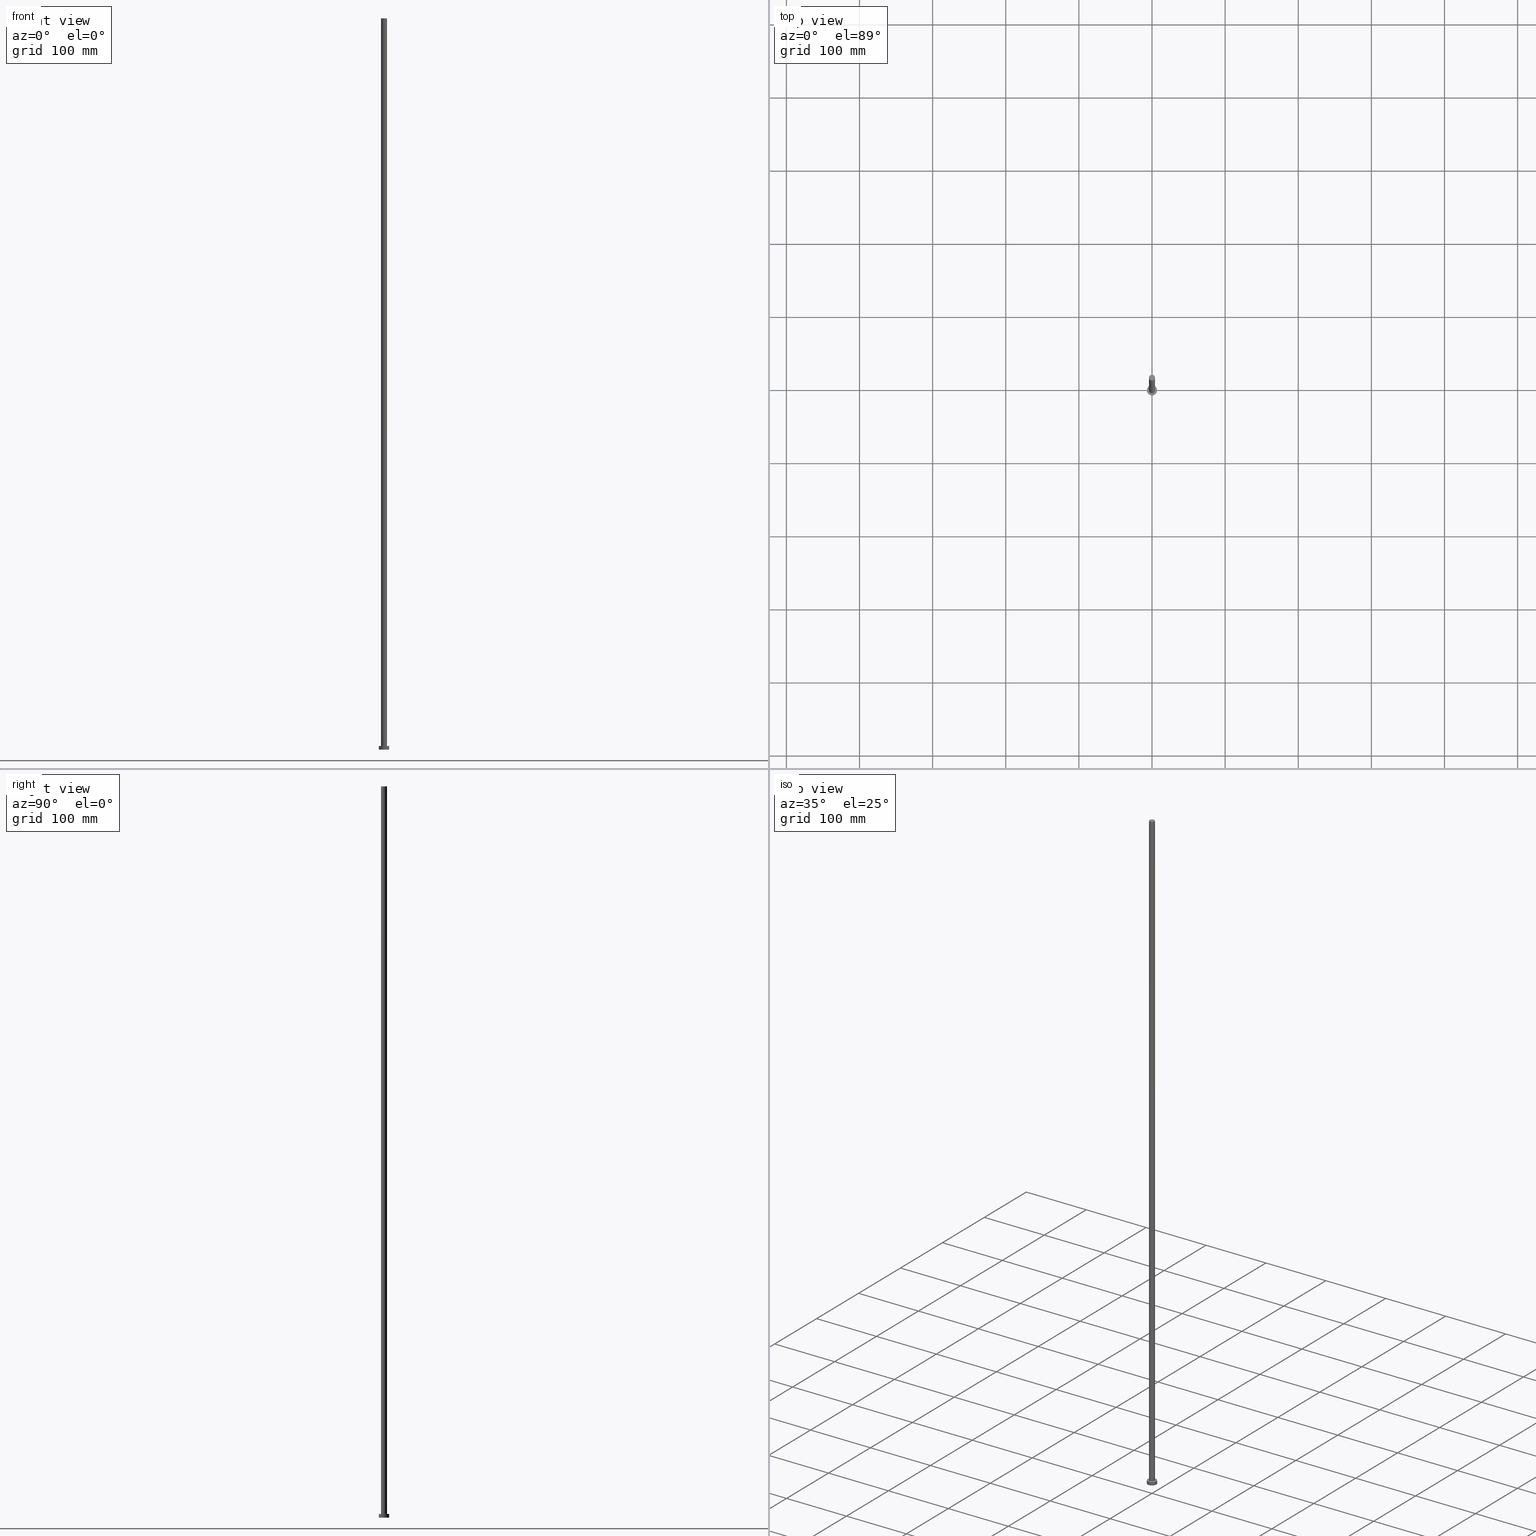
[diagram: canonical four-view strip — front | top / right | iso, engineering-drawing reading convention]
A machine part, canonical four-view strip (front | top / right | iso — engineering-drawing reading convention). The complete STEP part file that produces these views, byte-faithful:
ISO-10303-21;
HEADER;
FILE_DESCRIPTION (( 'STEP AP203' ),
    '1' );
FILE_NAME ('8072.STEP',
    '2023-02-12T11:44:51',
    ( '' ),
    ( '' ),
    'SwSTEP 2.0',
    'SolidWorks 2019',
    '' );
FILE_SCHEMA (( 'CONFIG_CONTROL_DESIGN' ));
ENDSEC;

DATA;
#1 = APPLICATION_PROTOCOL_DEFINITION ( 'international standard', 'config_control_design', 1994, #45 ) ;
#2 = DIRECTION ( 'NONE',  ( -0.000000000000000000, -0.000000000000000000, -1.000000000000000000 ) ) ;
#3 = DIRECTION ( 'NONE',  ( 1.000000000000000000, 0.000000000000000000, 0.000000000000000000 ) ) ;
#4 = AXIS2_PLACEMENT_3D ( 'NONE', #27, #56, #228 ) ;
#5 = ORIENTED_EDGE ( 'NONE', *, *, #226, .T. ) ;
#6 = DIRECTION ( 'NONE',  ( 0.000000000000000000, 0.000000000000000000, 1.000000000000000000 ) ) ;
#7 = ADVANCED_FACE ( 'NONE', ( #242 ), #142, .T. ) ;
#8 = LINE ( 'NONE', #103, #131 ) ;
#9 = CARTESIAN_POINT ( 'NONE',  ( 0.000000000000000000, 0.000000000000000000, 1000.000000000000000 ) ) ;
#10 = ORGANIZATION ( 'NEUR�EN�', 'NEUR�EN�', '' ) ;
#11 = FACE_BOUND ( 'NONE', #188, .T. ) ;
#12 = EDGE_CURVE ( 'NONE', #208, #168, #156, .T. ) ;
#13 = CARTESIAN_POINT ( 'NONE',  ( 0.000000000000000000, 0.000000000000000000, 5.000000000000000000 ) ) ;
#14 = SECURITY_CLASSIFICATION_LEVEL ( 'unclassified' ) ;
#15 = ORIENTED_EDGE ( 'NONE', *, *, #199, .F. ) ;
#16 = CALENDAR_DATE ( 2023, 12, 2 ) ;
#17 = AXIS2_PLACEMENT_3D ( 'NONE', #26, #229, #173 ) ;
#18 = CC_DESIGN_PERSON_AND_ORGANIZATION_ASSIGNMENT ( #98, #219, ( #171 ) ) ;
#19 = ORIENTED_EDGE ( 'NONE', *, *, #125, .T. ) ;
#20 = DIRECTION ( 'NONE',  ( -0.000000000000000000, -0.000000000000000000, -1.000000000000000000 ) ) ;
#21 = APPROVAL_STATUS ( 'not_yet_approved' ) ;
#22 = ORIENTED_EDGE ( 'NONE', *, *, #66, .F. ) ;
#23 = ORIENTED_EDGE ( 'NONE', *, *, #163, .F. ) ;
#24 = EDGE_LOOP ( 'NONE', ( #165, #76, #44, #39 ) ) ;
#25 = LINE ( 'NONE', #169, #176 ) ;
#26 = CARTESIAN_POINT ( 'NONE',  ( 0.000000000000000000, 0.000000000000000000, 5.000000000000000000 ) ) ;
#27 = CARTESIAN_POINT ( 'NONE',  ( 0.000000000000000000, 0.000000000000000000, 0.000000000000000000 ) ) ;
#28 = PRODUCT_RELATED_PRODUCT_CATEGORY ( 'detail', '', ( #88 ) ) ;
#29 = CC_DESIGN_SECURITY_CLASSIFICATION ( #93, ( #171 ) ) ;
#30 = DIRECTION ( 'NONE',  ( 0.000000000000000000, 0.000000000000000000, 1.000000000000000000 ) ) ;
#31 = DIRECTION ( 'NONE',  ( 1.000000000000000000, 0.000000000000000000, 0.000000000000000000 ) ) ;
#32 = LOCAL_TIME ( 12, 44, 51.00000000000000000, #200 ) ;
#33 = EDGE_LOOP ( 'NONE', ( #23, #19, #42, #22 ) ) ;
#34 = COORDINATED_UNIVERSAL_TIME_OFFSET ( 1, 0, .AHEAD. ) ;
#35 = PERSON ( 'NEUR�EN�', 'NEUR�EN�', 'NEUR�EN�', ('NEUR�EN�'), ('NEUR�EN�'), ('NEUR�EN�') ) ;
#36 = AXIS2_PLACEMENT_3D ( 'NONE', #149, #30, #31 ) ;
#37 = PERSON_AND_ORGANIZATION_ROLE ( 'classification_officer' ) ;
#38 = VERTEX_POINT ( 'NONE', #68 ) ;
#39 = ORIENTED_EDGE ( 'NONE', *, *, #113, .F. ) ;
#40 = VECTOR ( 'NONE', #20, 1000.000000000000000 ) ;
#41 = LOCAL_TIME ( 12, 44, 51.00000000000000000, #78 ) ;
#42 = ORIENTED_EDGE ( 'NONE', *, *, #74, .T. ) ;
#43 = VERTEX_POINT ( 'NONE', #104 ) ;
#44 = ORIENTED_EDGE ( 'NONE', *, *, #235, .T. ) ;
#45 = APPLICATION_CONTEXT ( 'configuration controlled 3d designs of mechanical parts and assemblies' ) ;
#46 = CARTESIAN_POINT ( 'NONE',  ( 0.000000000000000000, 0.000000000000000000, 5.000000000000000000 ) ) ;
#47 = DIRECTION ( 'NONE',  ( 0.000000000000000000, 0.000000000000000000, 1.000000000000000000 ) ) ;
#48 = CC_DESIGN_DATE_AND_TIME_ASSIGNMENT ( #238, #57, ( #213 ) ) ;
#49 = CARTESIAN_POINT ( 'NONE',  ( 7.000000000000000000, 8.572527594031473190E-16, 0.000000000000000000 ) ) ;
#50 = AXIS2_PLACEMENT_3D ( 'NONE', #127, #6, #3 ) ;
#51 = PRODUCT_DEFINITION_SHAPE ( 'NONE', 'NONE',  #213 ) ;
#52 = DIRECTION ( 'NONE',  ( 0.000000000000000000, 0.000000000000000000, 1.000000000000000000 ) ) ;
#53 = AXIS2_PLACEMENT_3D ( 'NONE', #9, #89, #111 ) ;
#54 = AXIS2_PLACEMENT_3D ( 'NONE', #112, #72, #153 ) ;
#55 = FACE_OUTER_BOUND ( 'NONE', #101, .T. ) ;
#56 = DIRECTION ( 'NONE',  ( 0.000000000000000000, 0.000000000000000000, 1.000000000000000000 ) ) ;
#57 = DATE_TIME_ROLE ( 'creation_date' ) ;
#58 = DATE_AND_TIME ( #160, #32 ) ;
#59 = APPROVAL_DATE_TIME ( #58, #62 ) ;
#60 = PERSON_AND_ORGANIZATION ( #35, #10 ) ;
#61 = ORIENTED_EDGE ( 'NONE', *, *, #163, .T. ) ;
#62 = APPROVAL ( #158, 'NEUR�EN�' ) ;
#63 = ORIENTED_EDGE ( 'NONE', *, *, #99, .T. ) ;
#64 = LOCAL_TIME ( 12, 44, 51.00000000000000000, #195 ) ;
#65 = CARTESIAN_POINT ( 'NONE',  ( -7.000000000000000000, 0.000000000000000000, 5.000000000000000000 ) ) ;
#66 = EDGE_CURVE ( 'NONE', #38, #129, #187, .T. ) ;
#67 = DIRECTION ( 'NONE',  ( 1.000000000000000000, 0.000000000000000000, 0.000000000000000000 ) ) ;
#68 = CARTESIAN_POINT ( 'NONE',  ( -4.099999999999999645, 0.000000000000000000, 1000.000000000000000 ) ) ;
#69 = EDGE_CURVE ( 'NONE', #208, #201, #8, .T. ) ;
#70 = CARTESIAN_POINT ( 'NONE',  ( 4.099999999999999645, 5.021051876504146399E-16, 1000.000000000000000 ) ) ;
#71 = CARTESIAN_POINT ( 'NONE',  ( 0.000000000000000000, 0.000000000000000000, 0.000000000000000000 ) ) ;
#72 = DIRECTION ( 'NONE',  ( 0.000000000000000000, 0.000000000000000000, 1.000000000000000000 ) ) ;
#73 = LOCAL_TIME ( 12, 44, 51.00000000000000000, #34 ) ;
#74 = EDGE_CURVE ( 'NONE', #43, #129, #170, .T. ) ;
#75 = PERSON_AND_ORGANIZATION ( #35, #10 ) ;
#76 = ORIENTED_EDGE ( 'NONE', *, *, #69, .T. ) ;
#77 =( GEOMETRIC_REPRESENTATION_CONTEXT ( 3 ) GLOBAL_UNCERTAINTY_ASSIGNED_CONTEXT ( ( #203 ) ) GLOBAL_UNIT_ASSIGNED_CONTEXT ( ( #191, #227, #215 ) ) REPRESENTATION_CONTEXT ( 'NONE', 'WORKASPACE' ) );
#78 = COORDINATED_UNIVERSAL_TIME_OFFSET ( 1, 0, .AHEAD. ) ;
#79 = DATE_AND_TIME ( #105, #185 ) ;
#80 = MANIFOLD_SOLID_BREP ( 'P�idat vysunut�m3', #141 ) ;
#81 = EDGE_LOOP ( 'NONE', ( #63, #61 ) ) ;
#82 = DATE_TIME_ROLE ( 'classification_date' ) ;
#83 = DIRECTION ( 'NONE',  ( 0.000000000000000000, 0.000000000000000000, 1.000000000000000000 ) ) ;
#84 = APPROVAL ( #138, 'NEUR�EN�' ) ;
#85 = ORIENTED_EDGE ( 'NONE', *, *, #113, .T. ) ;
#86 = FACE_OUTER_BOUND ( 'NONE', #81, .T. ) ;
#87 = LINE ( 'NONE', #65, #230 ) ;
#88 = PRODUCT ( '8072', '8072', '', ( #120 ) ) ;
#89 = DIRECTION ( 'NONE',  ( -0.000000000000000000, -0.000000000000000000, -1.000000000000000000 ) ) ;
#90 = CIRCLE ( 'NONE', #254, 7.000000000000000000 ) ;
#91 = DIRECTION ( 'NONE',  ( -1.000000000000000000, 0.000000000000000000, 0.000000000000000000 ) ) ;
#92 = CARTESIAN_POINT ( 'NONE',  ( 7.000000000000000000, 8.572527594031473190E-16, 5.000000000000000000 ) ) ;
#93 = SECURITY_CLASSIFICATION ( '', '', #14 ) ;
#94 = FACE_OUTER_BOUND ( 'NONE', #126, .T. ) ;
#95 = DATE_AND_TIME ( #16, #64 ) ;
#96 = AXIS2_PLACEMENT_3D ( 'NONE', #46, #124, #67 ) ;
#97 = CC_DESIGN_APPROVAL ( #233, ( #93 ) ) ;
#98 = PERSON_AND_ORGANIZATION ( #35, #10 ) ;
#99 = EDGE_CURVE ( 'NONE', #38, #220, #132, .T. ) ;
#100 = APPROVAL_ROLE ( '' ) ;
#101 = EDGE_LOOP ( 'NONE', ( #202, #123, #85, #108 ) ) ;
#102 = CIRCLE ( 'NONE', #236, 4.099999999999999645 ) ;
#103 = CARTESIAN_POINT ( 'NONE',  ( 7.000000000000000000, 8.572527594031473190E-16, 5.000000000000000000 ) ) ;
#104 = CARTESIAN_POINT ( 'NONE',  ( 4.099999999999999645, 5.021051876504146399E-16, 5.000000000000000000 ) ) ;
#105 = CALENDAR_DATE ( 2023, 12, 2 ) ;
#106 = CARTESIAN_POINT ( 'NONE',  ( 0.000000000000000000, 0.000000000000000000, 5.000000000000000000 ) ) ;
#107 = ADVANCED_FACE ( 'NONE', ( #86 ), #181, .T. ) ;
#108 = ORIENTED_EDGE ( 'NONE', *, *, #179, .T. ) ;
#109 = DIRECTION ( 'NONE',  ( -0.000000000000000000, -0.000000000000000000, -1.000000000000000000 ) ) ;
#110 = AXIS2_PLACEMENT_3D ( 'NONE', #145, #83, #223 ) ;
#111 = DIRECTION ( 'NONE',  ( -1.000000000000000000, 0.000000000000000000, 0.000000000000000000 ) ) ;
#112 = CARTESIAN_POINT ( 'NONE',  ( 0.000000000000000000, 0.000000000000000000, 0.000000000000000000 ) ) ;
#113 = EDGE_CURVE ( 'NONE', #168, #205, #87, .T. ) ;
#114 = CYLINDRICAL_SURFACE ( 'NONE', #162, 7.000000000000000000 ) ;
#115 = PLANE ( 'NONE',  #183 ) ;
#116 = APPROVAL_PERSON_ORGANIZATION ( #139, #84, #218 ) ;
#117 = PERSON_AND_ORGANIZATION ( #35, #10 ) ;
#118 = APPLICATION_CONTEXT ( 'configuration controlled 3d designs of mechanical parts and assemblies' ) ;
#119 = CALENDAR_DATE ( 2023, 12, 2 ) ;
#120 = MECHANICAL_CONTEXT ( 'NONE', #118, 'mechanical' ) ;
#121 = DESIGN_CONTEXT ( 'detailed design', #45, 'design' ) ;
#122 = CC_DESIGN_PERSON_AND_ORGANIZATION_ASSIGNMENT ( #60, #194, ( #88 ) ) ;
#123 = ORIENTED_EDGE ( 'NONE', *, *, #226, .F. ) ;
#124 = DIRECTION ( 'NONE',  ( 0.000000000000000000, 0.000000000000000000, 1.000000000000000000 ) ) ;
#125 = EDGE_CURVE ( 'NONE', #220, #43, #25, .T. ) ;
#126 = EDGE_LOOP ( 'NONE', ( #5, #128 ) ) ;
#127 = CARTESIAN_POINT ( 'NONE',  ( 0.000000000000000000, 0.000000000000000000, 1000.000000000000000 ) ) ;
#128 = ORIENTED_EDGE ( 'NONE', *, *, #12, .T. ) ;
#129 = VERTEX_POINT ( 'NONE', #140 ) ;
#130 = FACE_OUTER_BOUND ( 'NONE', #161, .T. ) ;
#131 = VECTOR ( 'NONE', #182, 1000.000000000000000 ) ;
#132 = CIRCLE ( 'NONE', #50, 4.099999999999999645 ) ;
#133 = CARTESIAN_POINT ( 'NONE',  ( -7.000000000000000000, 0.000000000000000000, 5.000000000000000000 ) ) ;
#134 = AXIS2_PLACEMENT_3D ( 'NONE', #151, #212, #91 ) ;
#135 = CC_DESIGN_PERSON_AND_ORGANIZATION_ASSIGNMENT ( #75, #197, ( #213 ) ) ;
#136 = APPROVAL_DATE_TIME ( #95, #84 ) ;
#137 = ORIENTED_EDGE ( 'NONE', *, *, #125, .F. ) ;
#138 = APPROVAL_STATUS ( 'not_yet_approved' ) ;
#139 = PERSON_AND_ORGANIZATION ( #35, #10 ) ;
#140 = CARTESIAN_POINT ( 'NONE',  ( -4.099999999999999645, 0.000000000000000000, 5.000000000000000000 ) ) ;
#141 = CLOSED_SHELL ( 'NONE', ( #159, #7, #240, #177, #150, #193, #107 ) ) ;
#142 = CYLINDRICAL_SURFACE ( 'NONE', #243, 7.000000000000000000 ) ;
#143 = CIRCLE ( 'NONE', #54, 7.000000000000000000 ) ;
#144 = SHAPE_DEFINITION_REPRESENTATION ( #51, #198 ) ;
#145 = CARTESIAN_POINT ( 'NONE',  ( 0.000000000000000000, 0.000000000000000000, 5.000000000000000000 ) ) ;
#146 = CARTESIAN_POINT ( 'NONE',  ( -4.099999999999999645, 0.000000000000000000, 1000.000000000000000 ) ) ;
#147 = APPROVAL_PERSON_ORGANIZATION ( #234, #62, #100 ) ;
#148 = FACE_OUTER_BOUND ( 'NONE', #216, .T. ) ;
#149 = CARTESIAN_POINT ( 'NONE',  ( 0.000000000000000000, 0.000000000000000000, 1000.000000000000000 ) ) ;
#150 = ADVANCED_FACE ( 'NONE', ( #130 ), #248, .F. ) ;
#151 = CARTESIAN_POINT ( 'NONE',  ( 0.000000000000000000, 0.000000000000000000, 1000.000000000000000 ) ) ;
#152 = CIRCLE ( 'NONE', #36, 4.099999999999999645 ) ;
#153 = DIRECTION ( 'NONE',  ( 1.000000000000000000, 0.000000000000000000, 0.000000000000000000 ) ) ;
#154 = CARTESIAN_POINT ( 'NONE',  ( -7.000000000000000000, 0.000000000000000000, 0.000000000000000000 ) ) ;
#155 = CC_DESIGN_PERSON_AND_ORGANIZATION_ASSIGNMENT ( #117, #252, ( #171 ) ) ;
#156 = CIRCLE ( 'NONE', #96, 7.000000000000000000 ) ;
#157 = CC_DESIGN_APPROVAL ( #84, ( #171 ) ) ;
#158 = APPROVAL_STATUS ( 'not_yet_approved' ) ;
#159 = ADVANCED_FACE ( 'NONE', ( #250 ), #214, .T. ) ;
#160 = CALENDAR_DATE ( 2023, 12, 2 ) ;
#161 = EDGE_LOOP ( 'NONE', ( #184, #204 ) ) ;
#162 = AXIS2_PLACEMENT_3D ( 'NONE', #13, #109, #251 ) ;
#163 = EDGE_CURVE ( 'NONE', #220, #38, #152, .T. ) ;
#164 = PERSON_AND_ORGANIZATION ( #35, #10 ) ;
#165 = ORIENTED_EDGE ( 'NONE', *, *, #12, .F. ) ;
#166 = ORIENTED_EDGE ( 'NONE', *, *, #66, .T. ) ;
#167 = DIRECTION ( 'NONE',  ( -0.000000000000000000, -0.000000000000000000, -1.000000000000000000 ) ) ;
#168 = VERTEX_POINT ( 'NONE', #133 ) ;
#169 = CARTESIAN_POINT ( 'NONE',  ( 4.099999999999999645, 5.021051876504146399E-16, 1000.000000000000000 ) ) ;
#170 = CIRCLE ( 'NONE', #110, 4.099999999999999645 ) ;
#171 = PRODUCT_DEFINITION_FORMATION_WITH_SPECIFIED_SOURCE ( 'LIBOVOLN�', '', #88, .NOT_KNOWN. ) ;
#172 = DIRECTION ( 'NONE',  ( 1.000000000000000000, 0.000000000000000000, 0.000000000000000000 ) ) ;
#173 = DIRECTION ( 'NONE',  ( 1.000000000000000000, 0.000000000000000000, 0.000000000000000000 ) ) ;
#174 = CARTESIAN_POINT ( 'NONE',  ( 0.000000000000000000, 0.000000000000000000, 5.000000000000000000 ) ) ;
#175 = COORDINATED_UNIVERSAL_TIME_OFFSET ( 1, 0, .AHEAD. ) ;
#176 = VECTOR ( 'NONE', #247, 1000.000000000000000 ) ;
#177 = ADVANCED_FACE ( 'NONE', ( #11, #94 ), #115, .T. ) ;
#178 = CALENDAR_DATE ( 2023, 12, 2 ) ;
#179 = EDGE_CURVE ( 'NONE', #205, #201, #90, .T. ) ;
#180 = APPROVAL_PERSON_ORGANIZATION ( #164, #233, #186 ) ;
#181 = PLANE ( 'NONE',  #196 ) ;
#182 = DIRECTION ( 'NONE',  ( -0.000000000000000000, -0.000000000000000000, -1.000000000000000000 ) ) ;
#183 = AXIS2_PLACEMENT_3D ( 'NONE', #174, #47, #211 ) ;
#184 = ORIENTED_EDGE ( 'NONE', *, *, #179, .F. ) ;
#185 = LOCAL_TIME ( 12, 44, 51.00000000000000000, #175 ) ;
#186 = APPROVAL_ROLE ( '' ) ;
#187 = LINE ( 'NONE', #146, #40 ) ;
#188 = EDGE_LOOP ( 'NONE', ( #15, #222 ) ) ;
#189 = DIRECTION ( 'NONE',  ( 1.000000000000000000, 0.000000000000000000, 0.000000000000000000 ) ) ;
#190 = CC_DESIGN_DATE_AND_TIME_ASSIGNMENT ( #79, #82, ( #93 ) ) ;
#191 =( LENGTH_UNIT ( ) NAMED_UNIT ( * ) SI_UNIT ( .MILLI., .METRE. ) );
#192 = DIRECTION ( 'NONE',  ( 0.000000000000000000, 0.000000000000000000, 1.000000000000000000 ) ) ;
#193 = ADVANCED_FACE ( 'NONE', ( #148 ), #249, .T. ) ;
#194 = PERSON_AND_ORGANIZATION_ROLE ( 'design_owner' ) ;
#195 = COORDINATED_UNIVERSAL_TIME_OFFSET ( 1, 0, .AHEAD. ) ;
#196 = AXIS2_PLACEMENT_3D ( 'NONE', #244, #246, #224 ) ;
#197 = PERSON_AND_ORGANIZATION_ROLE ( 'creator' ) ;
#198 = ADVANCED_BREP_SHAPE_REPRESENTATION ( '8072', ( #80, #209 ), #77 ) ;
#199 = EDGE_CURVE ( 'NONE', #129, #43, #102, .T. ) ;
#200 = COORDINATED_UNIVERSAL_TIME_OFFSET ( 1, 0, .AHEAD. ) ;
#201 = VERTEX_POINT ( 'NONE', #49 ) ;
#202 = ORIENTED_EDGE ( 'NONE', *, *, #69, .F. ) ;
#203 = UNCERTAINTY_MEASURE_WITH_UNIT (LENGTH_MEASURE( 1.000000000000000082E-05 ), #191, 'distance_accuracy_value', 'NONE');
#204 = ORIENTED_EDGE ( 'NONE', *, *, #235, .F. ) ;
#205 = VERTEX_POINT ( 'NONE', #154 ) ;
#206 = CC_DESIGN_PERSON_AND_ORGANIZATION_ASSIGNMENT ( #217, #37, ( #93 ) ) ;
#207 = DATE_AND_TIME ( #178, #41 ) ;
#208 = VERTEX_POINT ( 'NONE', #92 ) ;
#209 = AXIS2_PLACEMENT_3D ( 'NONE', #253, #239, #255 ) ;
#210 = ORIENTED_EDGE ( 'NONE', *, *, #199, .T. ) ;
#211 = DIRECTION ( 'NONE',  ( 1.000000000000000000, 0.000000000000000000, -0.000000000000000000 ) ) ;
#212 = DIRECTION ( 'NONE',  ( -0.000000000000000000, -0.000000000000000000, -1.000000000000000000 ) ) ;
#213 = PRODUCT_DEFINITION ( 'NEZN�M�', '', #171, #121 ) ;
#214 = CYLINDRICAL_SURFACE ( 'NONE', #53, 4.099999999999999645 ) ;
#215 =( NAMED_UNIT ( * ) SI_UNIT ( $, .STERADIAN. ) SOLID_ANGLE_UNIT ( ) );
#216 = EDGE_LOOP ( 'NONE', ( #137, #221, #166, #210 ) ) ;
#217 = PERSON_AND_ORGANIZATION ( #35, #10 ) ;
#218 = APPROVAL_ROLE ( '' ) ;
#219 = PERSON_AND_ORGANIZATION_ROLE ( 'design_supplier' ) ;
#220 = VERTEX_POINT ( 'NONE', #70 ) ;
#221 = ORIENTED_EDGE ( 'NONE', *, *, #99, .F. ) ;
#222 = ORIENTED_EDGE ( 'NONE', *, *, #74, .F. ) ;
#223 = DIRECTION ( 'NONE',  ( 1.000000000000000000, 0.000000000000000000, 0.000000000000000000 ) ) ;
#224 = DIRECTION ( 'NONE',  ( 1.000000000000000000, 0.000000000000000000, -0.000000000000000000 ) ) ;
#225 = CIRCLE ( 'NONE', #17, 7.000000000000000000 ) ;
#226 = EDGE_CURVE ( 'NONE', #168, #208, #225, .T. ) ;
#227 =( NAMED_UNIT ( * ) PLANE_ANGLE_UNIT ( ) SI_UNIT ( $, .RADIAN. ) );
#228 = DIRECTION ( 'NONE',  ( 1.000000000000000000, 0.000000000000000000, -0.000000000000000000 ) ) ;
#229 = DIRECTION ( 'NONE',  ( 0.000000000000000000, 0.000000000000000000, 1.000000000000000000 ) ) ;
#230 = VECTOR ( 'NONE', #2, 1000.000000000000000 ) ;
#231 = CC_DESIGN_APPROVAL ( #62, ( #213 ) ) ;
#232 = CARTESIAN_POINT ( 'NONE',  ( 0.000000000000000000, 0.000000000000000000, 5.000000000000000000 ) ) ;
#233 = APPROVAL ( #21, 'NEUR�EN�' ) ;
#234 = PERSON_AND_ORGANIZATION ( #35, #10 ) ;
#235 = EDGE_CURVE ( 'NONE', #201, #205, #143, .T. ) ;
#236 = AXIS2_PLACEMENT_3D ( 'NONE', #232, #52, #189 ) ;
#237 = APPLICATION_PROTOCOL_DEFINITION ( 'international standard', 'config_control_design', 1994, #118 ) ;
#238 = DATE_AND_TIME ( #119, #73 ) ;
#239 = DIRECTION ( 'NONE',  ( 0.000000000000000000, 0.000000000000000000, 1.000000000000000000 ) ) ;
#240 = ADVANCED_FACE ( 'NONE', ( #55 ), #114, .T. ) ;
#241 = APPROVAL_DATE_TIME ( #207, #233 ) ;
#242 = FACE_OUTER_BOUND ( 'NONE', #24, .T. ) ;
#243 = AXIS2_PLACEMENT_3D ( 'NONE', #106, #167, #245 ) ;
#244 = CARTESIAN_POINT ( 'NONE',  ( 0.000000000000000000, 0.000000000000000000, 1000.000000000000000 ) ) ;
#245 = DIRECTION ( 'NONE',  ( -1.000000000000000000, 0.000000000000000000, 0.000000000000000000 ) ) ;
#246 = DIRECTION ( 'NONE',  ( 0.000000000000000000, 0.000000000000000000, 1.000000000000000000 ) ) ;
#247 = DIRECTION ( 'NONE',  ( -0.000000000000000000, -0.000000000000000000, -1.000000000000000000 ) ) ;
#248 = PLANE ( 'NONE',  #4 ) ;
#249 = CYLINDRICAL_SURFACE ( 'NONE', #134, 4.099999999999999645 ) ;
#250 = FACE_OUTER_BOUND ( 'NONE', #33, .T. ) ;
#251 = DIRECTION ( 'NONE',  ( -1.000000000000000000, 0.000000000000000000, 0.000000000000000000 ) ) ;
#252 = PERSON_AND_ORGANIZATION_ROLE ( 'creator' ) ;
#253 = CARTESIAN_POINT ( 'NONE',  ( 0.000000000000000000, 0.000000000000000000, 0.000000000000000000 ) ) ;
#254 = AXIS2_PLACEMENT_3D ( 'NONE', #71, #192, #172 ) ;
#255 = DIRECTION ( 'NONE',  ( 1.000000000000000000, 0.000000000000000000, 0.000000000000000000 ) ) ;
ENDSEC;
END-ISO-10303-21;
